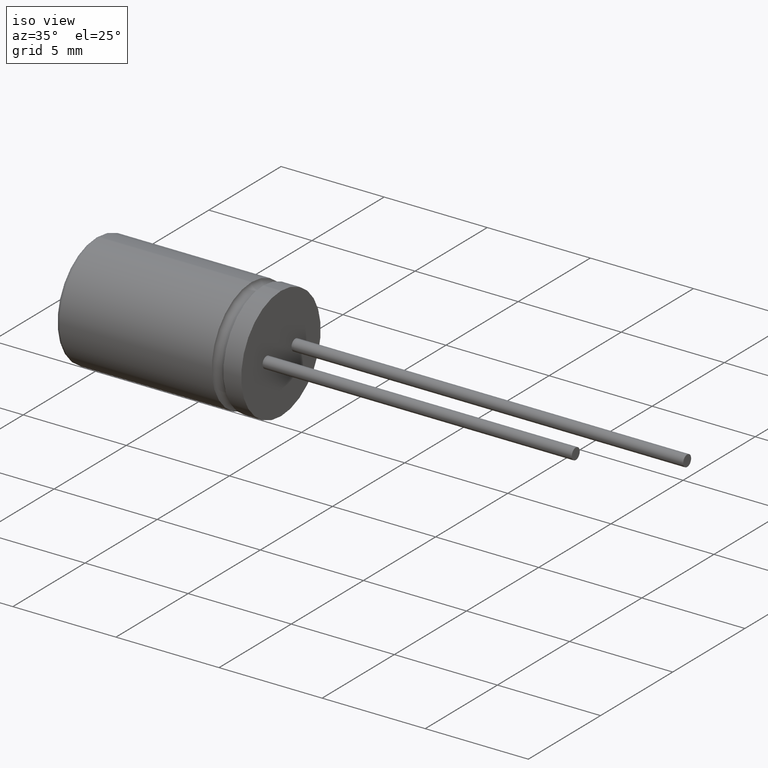
[diagram: clean part render]
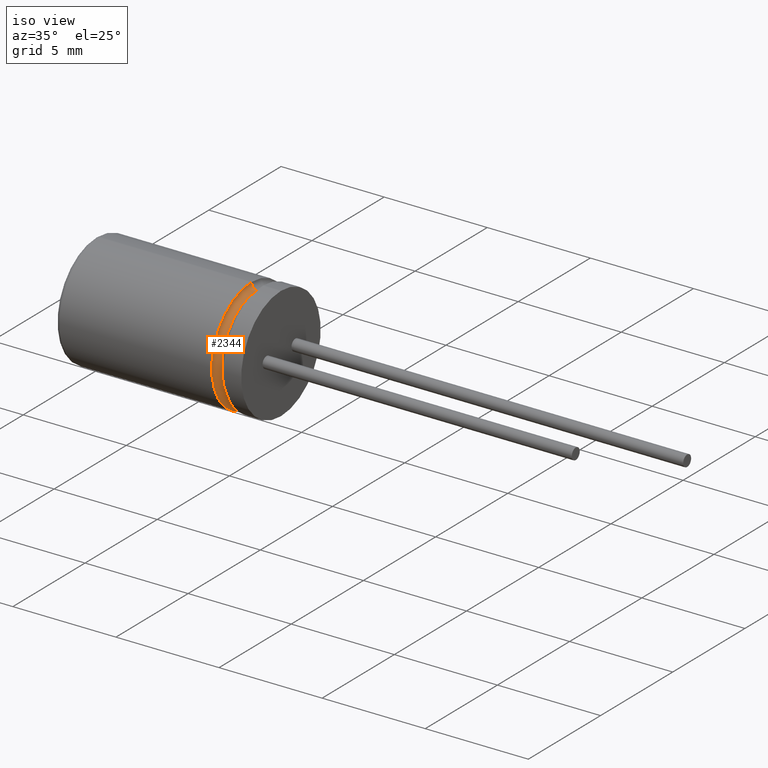
[diagram: same view with one face highlighted and labeled with its STEP entity id]
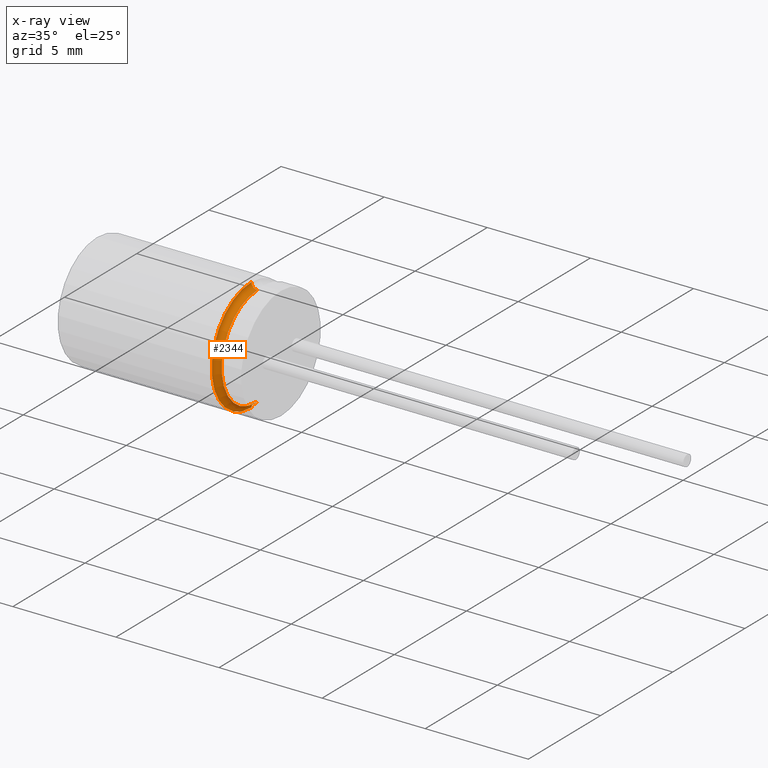
[diagram: x-ray of the same camera — body ghosted, the highlighted face saturated]
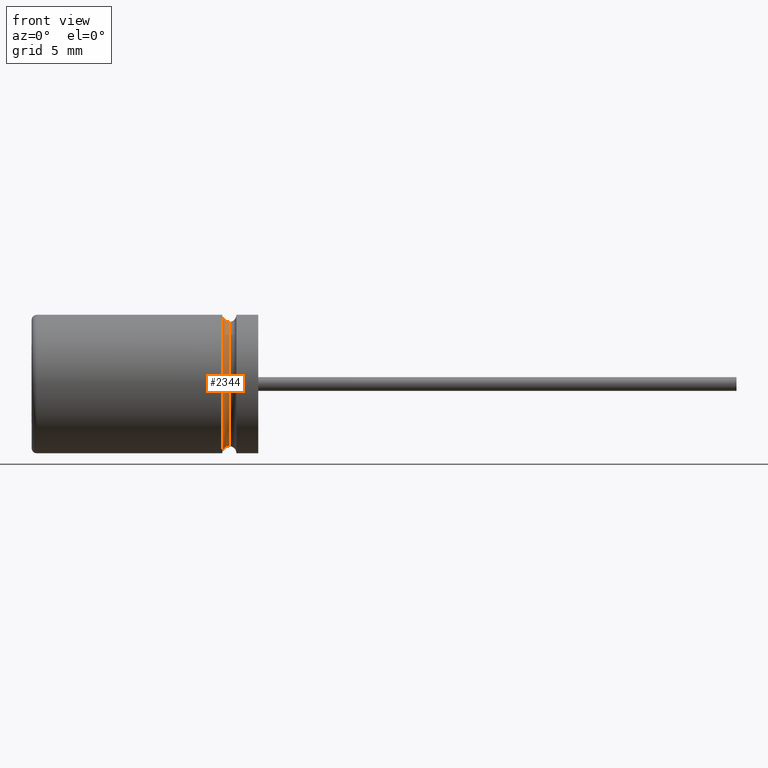
[diagram: same view with one face highlighted and labeled with its STEP entity id]
A machine part, iso view. The second image highlights one B-rep face of the part: STEP entity #2344.
The next image is the same camera in x-ray: the body ghosted, the highlighted face saturated — about 0% of this face is hidden behind the body in this view.
A second angle (front view) of the same face is appended — the face is thin or edge-on in the first view.
In plain terms, the highlighted toroidal blend (fillet) surface has major radius 2.75 mm and minor (blend) radius 0.2812 mm.
Its self-contained STEP definition (entity closure, byte-faithful):
#14 = DIRECTION ( 'NONE',  ( 1.000000000000000000, -0.0000000000000000000, -0.0000000000000000000 ) ) ;
#208 = CARTESIAN_POINT ( 'NONE',  ( 7.852499999999998300, 3.023346785395028400E-016, 2.468750000000000000 ) ) ;
#284 = DIRECTION ( 'NONE',  ( 1.000000000000000000, -0.0000000000000000000, -0.0000000000000000000 ) ) ;
#377 = EDGE_CURVE ( 'NONE', #2750, #1297, #1020, .T. ) ;
#526 = DIRECTION ( 'NONE',  ( 0.0000000000000000000, 1.000000000000000000, -1.224646799147353200E-016 ) ) ;
#833 = DIRECTION ( 'NONE',  ( 0.0000000000000000000, 0.0000000000000000000, -1.000000000000000000 ) ) ;
#865 = EDGE_CURVE ( 'NONE', #1294, #2750, #1482, .T. ) ;
#870 = ORIENTED_EDGE ( 'NONE', *, *, #865, .F. ) ;
#949 = TOROIDAL_SURFACE ( 'NONE', #3062, 2.750000000000000000, 0.2812499999999998300 ) ;
#1020 = CIRCLE ( 'NONE', #1481, 0.2812499999999998300 ) ;
#1279 = DIRECTION ( 'NONE',  ( 1.000000000000000000, -0.0000000000000000000, -0.0000000000000000000 ) ) ;
#1294 = VERTEX_POINT ( 'NONE', #208 ) ;
#1297 = VERTEX_POINT ( 'NONE', #2637 ) ;
#1481 = AXIS2_PLACEMENT_3D ( 'NONE', #2156, #3000, #833 ) ;
#1482 = CIRCLE ( 'NONE', #3095, 2.468750000000000000 ) ;
#1570 = CIRCLE ( 'NONE', #2706, 0.2812499999999998300 ) ;
#1597 = AXIS2_PLACEMENT_3D ( 'NONE', #2887, #1279, #2897 ) ;
#1605 = DIRECTION ( 'NONE',  ( 0.0000000000000000000, 0.0000000000000000000, -1.000000000000000000 ) ) ;
#1611 = CARTESIAN_POINT ( 'NONE',  ( 7.571249999999998300, 3.367778697655221000E-016, 2.750000000000000000 ) ) ;
#1738 = CARTESIAN_POINT ( 'NONE',  ( 7.852499999999998300, 0.0000000000000000000, 0.0000000000000000000 ) ) ;
#1833 = DIRECTION ( 'NONE',  ( 0.0000000000000000000, 0.0000000000000000000, -1.000000000000000000 ) ) ;
#2009 = CARTESIAN_POINT ( 'NONE',  ( 7.852499999999998300, 0.0000000000000000000, -2.468750000000000000 ) ) ;
#2154 = CIRCLE ( 'NONE', #1597, 2.750000000000000000 ) ;
#2156 = CARTESIAN_POINT ( 'NONE',  ( 7.852499999999998300, 0.0000000000000000000, -2.750000000000000000 ) ) ;
#2201 = FACE_OUTER_BOUND ( 'NONE', #3313, .T. ) ;
#2344 = ADVANCED_FACE ( 'NONE', ( #2201 ), #949, .F. ) ;
#2460 = EDGE_CURVE ( 'NONE', #1294, #2948, #1570, .T. ) ;
#2541 = ORIENTED_EDGE ( 'NONE', *, *, #2460, .T. ) ;
#2593 = ORIENTED_EDGE ( 'NONE', *, *, #377, .F. ) ;
#2637 = CARTESIAN_POINT ( 'NONE',  ( 7.571249999999998300, 0.0000000000000000000, -2.750000000000000000 ) ) ;
#2701 = CARTESIAN_POINT ( 'NONE',  ( 7.852499999999998300, 0.0000000000000000000, 0.0000000000000000000 ) ) ;
#2706 = AXIS2_PLACEMENT_3D ( 'NONE', #2963, #526, #3211 ) ;
#2750 = VERTEX_POINT ( 'NONE', #2009 ) ;
#2798 = EDGE_CURVE ( 'NONE', #2948, #1297, #2154, .T. ) ;
#2887 = CARTESIAN_POINT ( 'NONE',  ( 7.571249999999999100, 0.0000000000000000000, 0.0000000000000000000 ) ) ;
#2897 = DIRECTION ( 'NONE',  ( 0.0000000000000000000, 0.0000000000000000000, -1.000000000000000000 ) ) ;
#2948 = VERTEX_POINT ( 'NONE', #1611 ) ;
#2963 = CARTESIAN_POINT ( 'NONE',  ( 7.852499999999998300, 3.367778697655221000E-016, 2.750000000000000000 ) ) ;
#3000 = DIRECTION ( 'NONE',  ( -0.0000000000000000000, -1.000000000000000000, -0.0000000000000000000 ) ) ;
#3062 = AXIS2_PLACEMENT_3D ( 'NONE', #1738, #14, #1833 ) ;
#3095 = AXIS2_PLACEMENT_3D ( 'NONE', #2701, #284, #1605 ) ;
#3211 = DIRECTION ( 'NONE',  ( 0.0000000000000000000, 1.224646799147353000E-016, 1.000000000000000000 ) ) ;
#3247 = ORIENTED_EDGE ( 'NONE', *, *, #2798, .T. ) ;
#3313 = EDGE_LOOP ( 'NONE', ( #870, #2541, #3247, #2593 ) ) ;